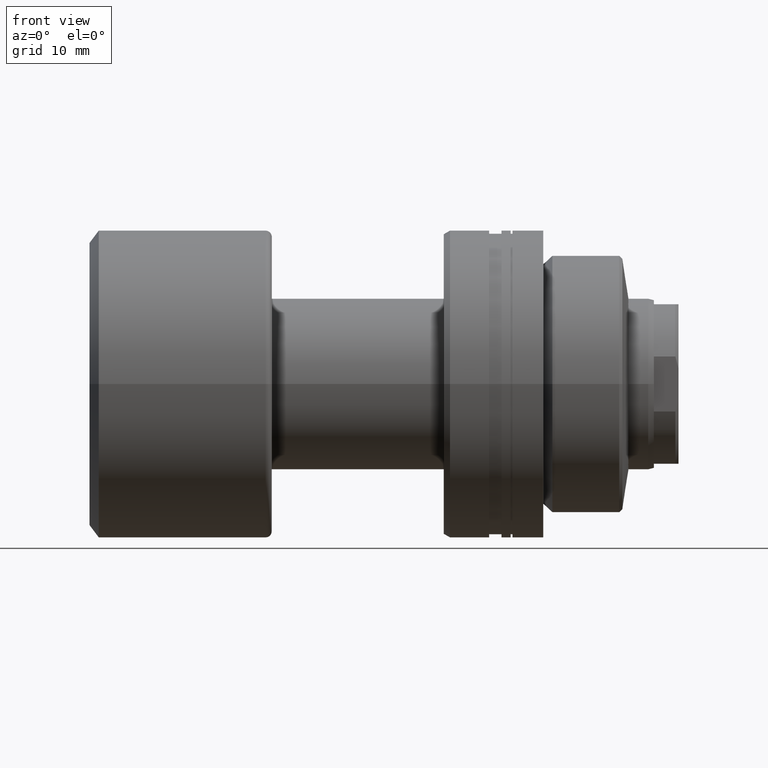
[diagram: clean part render]
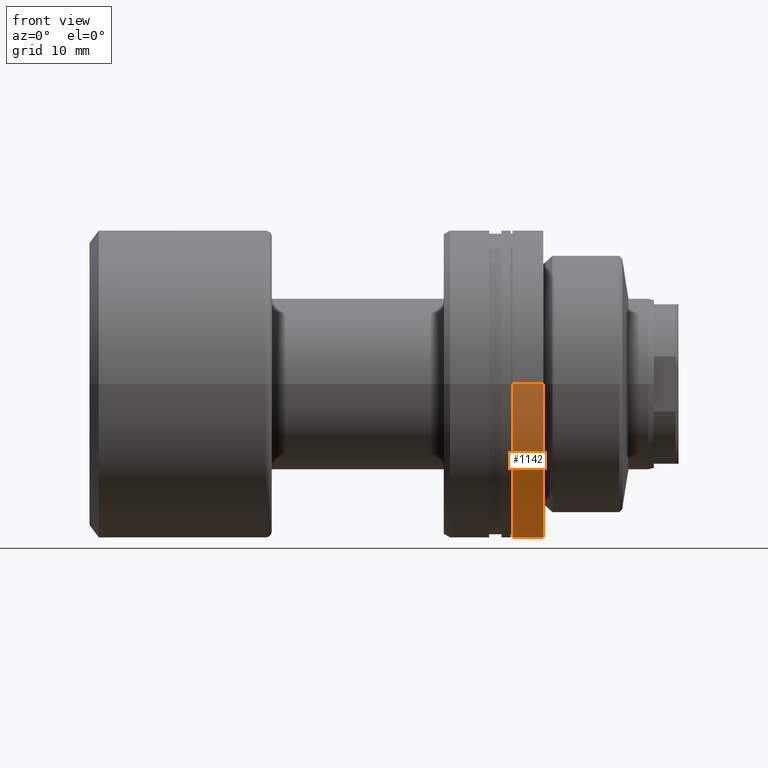
[diagram: same view with one face highlighted and labeled with its STEP entity id]
A machine part, front view. The second image highlights one B-rep face of the part: STEP entity #1142.
In plain terms, the highlighted cylindrical surface (partial cylindrical patch) has radius 25 mm, axis along (1, 0, 0).
Its self-contained STEP definition (entity closure, byte-faithful):
#12 = CARTESIAN_POINT ( 'NONE',  ( -15.99999999999999645, -25.00000000000000711, 3.061616997868387381E-15 ) ) ;
#34 = DIRECTION ( 'NONE',  ( -1.942890293094021579E-15, 1.000000000000000000, 0.000000000000000000 ) ) ;
#60 = DIRECTION ( 'NONE',  ( 1.000000000000000000, 1.931394410353556421E-15, -0.000000000000000000 ) ) ;
#203 = EDGE_CURVE ( 'NONE', #1845, #1842, #680, .T. ) ;
#284 = DIRECTION ( 'NONE',  ( 1.000000000000000000, 1.931394410353556421E-15, -0.000000000000000000 ) ) ;
#373 = CARTESIAN_POINT ( 'NONE',  ( -20.99999999999999645, -25.00000000000000711, 3.061616997868387381E-15 ) ) ;
#421 = VECTOR ( 'NONE', #855, 1000.000000000000000 ) ;
#430 = EDGE_LOOP ( 'NONE', ( #538, #1993, #1643, #634 ) ) ;
#538 = ORIENTED_EDGE ( 'NONE', *, *, #203, .F. ) ;
#577 = VERTEX_POINT ( 'NONE', #2232 ) ;
#634 = ORIENTED_EDGE ( 'NONE', *, *, #1467, .F. ) ;
#652 = DIRECTION ( 'NONE',  ( -1.942890293094021579E-15, 1.000000000000000000, 0.000000000000000000 ) ) ;
#665 = CARTESIAN_POINT ( 'NONE',  ( -21.00000000000004619, 1.792338409999709129E-14, 0.000000000000000000 ) ) ;
#680 = LINE ( 'NONE', #1571, #1145 ) ;
#821 = FACE_OUTER_BOUND ( 'NONE', #430, .T. ) ;
#855 = DIRECTION ( 'NONE',  ( 1.000000000000000000, 1.931394410353556421E-15, -0.000000000000000000 ) ) ;
#1026 = LINE ( 'NONE', #1922, #421 ) ;
#1112 = AXIS2_PLACEMENT_3D ( 'NONE', #1870, #1855, #652 ) ;
#1142 = ADVANCED_FACE ( 'NONE', ( #821 ), #2253, .T. ) ;
#1145 = VECTOR ( 'NONE', #284, 1000.000000000000000 ) ;
#1209 = EDGE_CURVE ( 'NONE', #577, #1378, #1026, .T. ) ;
#1271 = CIRCLE ( 'NONE', #1796, 25.00000000000002132 ) ;
#1378 = VERTEX_POINT ( 'NONE', #1491 ) ;
#1467 = EDGE_CURVE ( 'NONE', #1842, #1378, #1536, .T. ) ;
#1491 = CARTESIAN_POINT ( 'NONE',  ( -16.00000000000009237, 25.00000000000006040, 0.000000000000000000 ) ) ;
#1536 = CIRCLE ( 'NONE', #1983, 25.00000000000003197 ) ;
#1571 = CARTESIAN_POINT ( 'NONE',  ( -30.28002276692727435, -25.00000000000002842, 3.061616997868386592E-15 ) ) ;
#1643 = ORIENTED_EDGE ( 'NONE', *, *, #1209, .T. ) ;
#1676 = CARTESIAN_POINT ( 'NONE',  ( -16.00000000000004619, 2.758035615176487261E-14, 0.000000000000000000 ) ) ;
#1796 = AXIS2_PLACEMENT_3D ( 'NONE', #665, #1934, #1948 ) ;
#1842 = VERTEX_POINT ( 'NONE', #12 ) ;
#1845 = VERTEX_POINT ( 'NONE', #373 ) ;
#1855 = DIRECTION ( 'NONE',  ( 1.000000000000000000, 1.931394410353556421E-15, -0.000000000000000000 ) ) ;
#1870 = CARTESIAN_POINT ( 'NONE',  ( -30.28002276692732408, 0.000000000000000000, 0.000000000000000000 ) ) ;
#1922 = CARTESIAN_POINT ( 'NONE',  ( -30.28002276692737382, 25.00000000000002842, 0.000000000000000000 ) ) ;
#1934 = DIRECTION ( 'NONE',  ( 1.000000000000000000, 1.931394410353556421E-15, -0.000000000000000000 ) ) ;
#1948 = DIRECTION ( 'NONE',  ( -1.942890293094022368E-15, 1.000000000000000000, 0.000000000000000000 ) ) ;
#1983 = AXIS2_PLACEMENT_3D ( 'NONE', #1676, #60, #34 ) ;
#1993 = ORIENTED_EDGE ( 'NONE', *, *, #2171, .T. ) ;
#2171 = EDGE_CURVE ( 'NONE', #1845, #577, #1271, .T. ) ;
#2232 = CARTESIAN_POINT ( 'NONE',  ( -21.00000000000009592, 25.00000000000003908, 0.000000000000000000 ) ) ;
#2253 = CYLINDRICAL_SURFACE ( 'NONE', #1112, 25.00000000000002842 ) ;